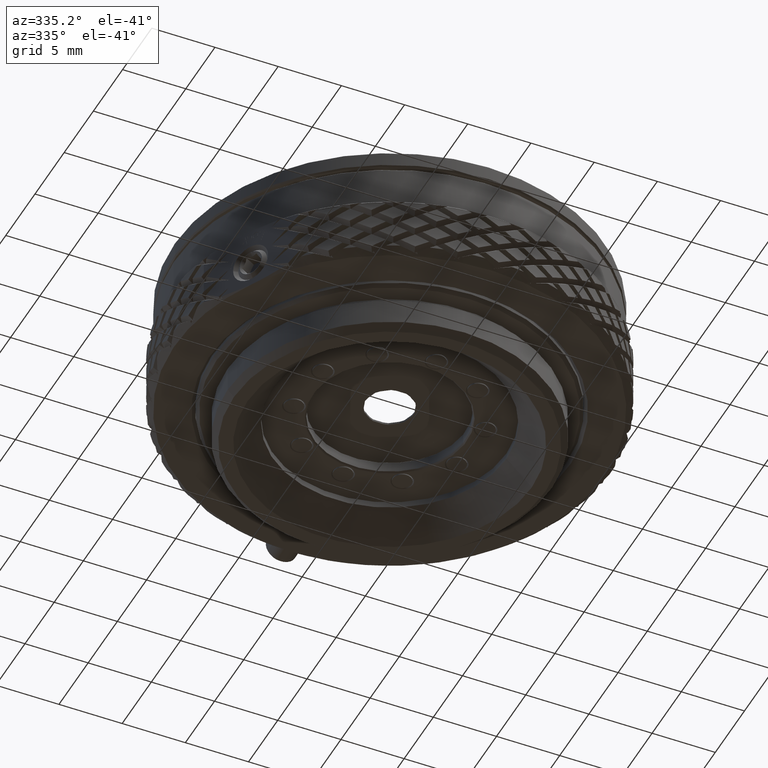
[diagram: clean part render]
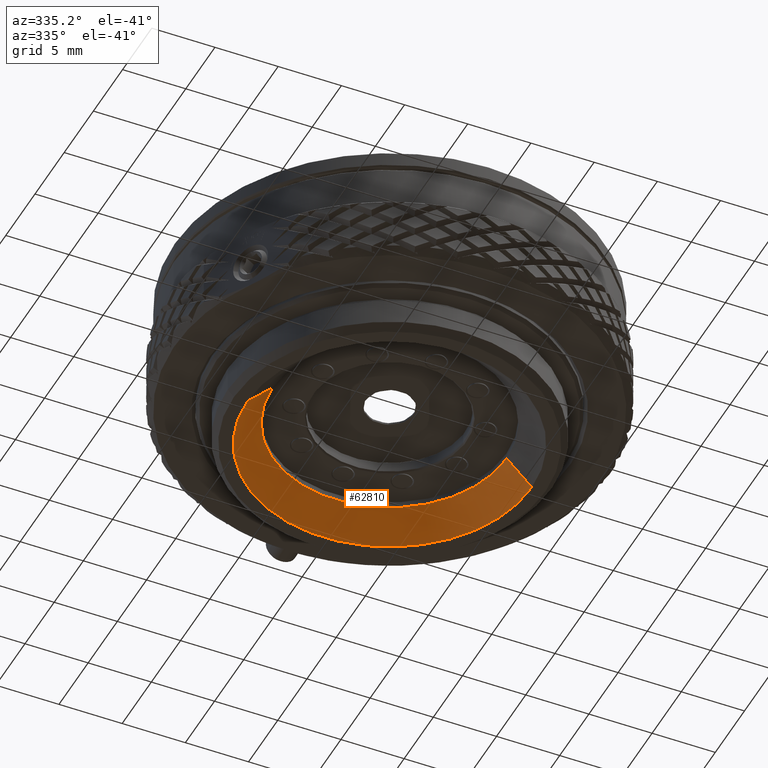
[diagram: same view with one face highlighted and labeled with its STEP entity id]
A machine part, auxiliary view. The second image highlights one B-rep face of the part: STEP entity #62810.
In plain terms, the highlighted conical surface has half-angle 45 deg.
Its self-contained STEP definition (entity closure, byte-faithful):
#4408 = AXIS2_PLACEMENT_3D ( 'NONE', #61479, #41284, #21843 ) ;
#5204 = ORIENTED_EDGE ( 'NONE', *, *, #49244, .F. ) ;
#7275 = CARTESIAN_POINT ( 'NONE',  ( 0.000000000000000000, 0.000000000000000000, 0.000000000000000000 ) ) ;
#16266 = VECTOR ( 'NONE', #64032, 1000.000000000000000 ) ;
#17076 = LINE ( 'NONE', #18328, #16266 ) ;
#18328 = CARTESIAN_POINT ( 'NONE',  ( -11.24999999999998401, 0.000000000000000000, 0.000000000000000000 ) ) ;
#21843 = DIRECTION ( 'NONE',  ( 1.000000000000000000, 0.000000000000000000, 0.000000000000000000 ) ) ;
#22313 = VERTEX_POINT ( 'NONE', #64782 ) ;
#23503 = DIRECTION ( 'NONE',  ( -0.000000000000000000, -0.000000000000000000, -1.000000000000000000 ) ) ;
#24478 = VERTEX_POINT ( 'NONE', #45265 ) ;
#24623 = DIRECTION ( 'NONE',  ( 1.000000000000000000, 0.000000000000000000, 0.000000000000000000 ) ) ;
#24809 = VERTEX_POINT ( 'NONE', #74724 ) ;
#32794 = ORIENTED_EDGE ( 'NONE', *, *, #55324, .F. ) ;
#33981 = AXIS2_PLACEMENT_3D ( 'NONE', #36855, #23503, #49807 ) ;
#34264 = EDGE_CURVE ( 'NONE', #24809, #81231, #62142, .T. ) ;
#36327 = CARTESIAN_POINT ( 'NONE',  ( 9.250000000000000000, 0.000000000000000000, 1.999999999999994893 ) ) ;
#36855 = CARTESIAN_POINT ( 'NONE',  ( 0.000000000000000000, 0.000000000000000000, 0.000000000000000000 ) ) ;
#41284 = DIRECTION ( 'NONE',  ( -0.000000000000000000, -0.000000000000000000, -1.000000000000000000 ) ) ;
#43844 = DIRECTION ( 'NONE',  ( 0.7071067811865456854, 8.659560562354910671E-17, -0.7071067811865493491 ) ) ;
#45265 = CARTESIAN_POINT ( 'NONE',  ( -11.24999999999998401, 0.000000000000000000, 0.000000000000000000 ) ) ;
#47151 = VECTOR ( 'NONE', #43844, 1000.000000000000000 ) ;
#49244 = EDGE_CURVE ( 'NONE', #81231, #22313, #62768, .T. ) ;
#49363 = ORIENTED_EDGE ( 'NONE', *, *, #67358, .T. ) ;
#49807 = DIRECTION ( 'NONE',  ( -1.000000000000000000, 0.000000000000000000, 0.000000000000000000 ) ) ;
#51734 = ORIENTED_EDGE ( 'NONE', *, *, #34264, .F. ) ;
#55324 = EDGE_CURVE ( 'NONE', #22313, #24478, #66700, .T. ) ;
#55701 = AXIS2_PLACEMENT_3D ( 'NONE', #7275, #83654, #24623 ) ;
#61479 = CARTESIAN_POINT ( 'NONE',  ( 0.000000000000000000, 0.000000000000000000, 1.999999999999994893 ) ) ;
#61485 = CONICAL_SURFACE ( 'NONE', #33981, 11.24999999999998401, 0.7853981633974457255 ) ;
#62142 = CIRCLE ( 'NONE', #4408, 9.250000000000000000 ) ;
#62288 = FACE_OUTER_BOUND ( 'NONE', #82230, .T. ) ;
#62768 = LINE ( 'NONE', #83424, #47151 ) ;
#62810 = ADVANCED_FACE ( 'NONE', ( #62288 ), #61485, .F. ) ;
#64032 = DIRECTION ( 'NONE',  ( -0.7071067811865456854, 0.000000000000000000, -0.7071067811865493491 ) ) ;
#64782 = CARTESIAN_POINT ( 'NONE',  ( 11.24999999999998401, 1.377727649040770417E-15, 0.000000000000000000 ) ) ;
#66700 = CIRCLE ( 'NONE', #55701, 11.24999999999998401 ) ;
#67358 = EDGE_CURVE ( 'NONE', #24809, #24478, #17076, .T. ) ;
#74724 = CARTESIAN_POINT ( 'NONE',  ( -9.250000000000000000, 1.132798289211301501E-15, 1.999999999999994893 ) ) ;
#81231 = VERTEX_POINT ( 'NONE', #36327 ) ;
#82230 = EDGE_LOOP ( 'NONE', ( #5204, #51734, #49363, #32794 ) ) ;
#83424 = CARTESIAN_POINT ( 'NONE',  ( 11.24999999999998401, 1.377727649040770417E-15, 0.000000000000000000 ) ) ;
#83654 = DIRECTION ( 'NONE',  ( 0.000000000000000000, 0.000000000000000000, 1.000000000000000000 ) ) ;